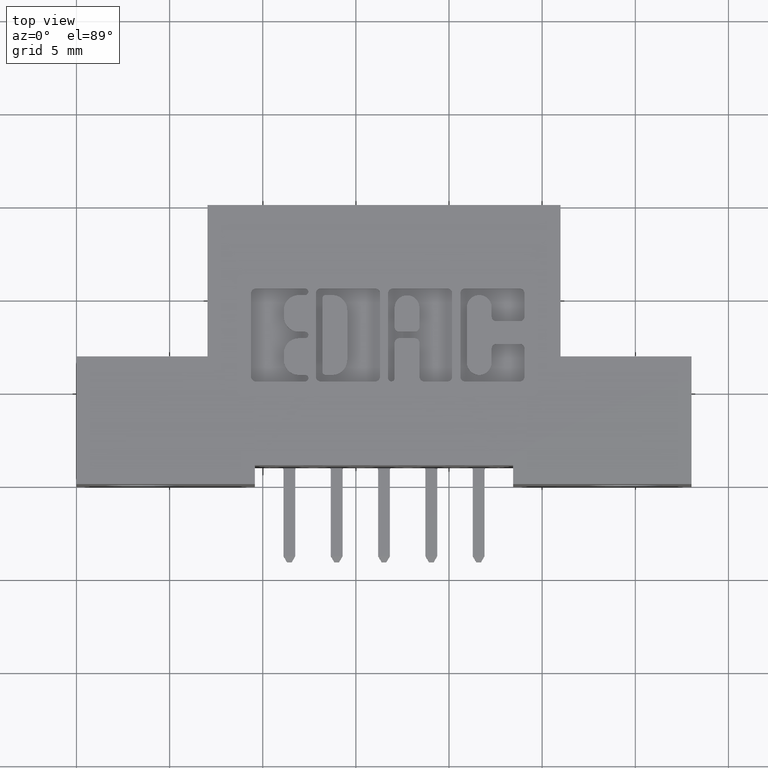
[diagram: clean part render]
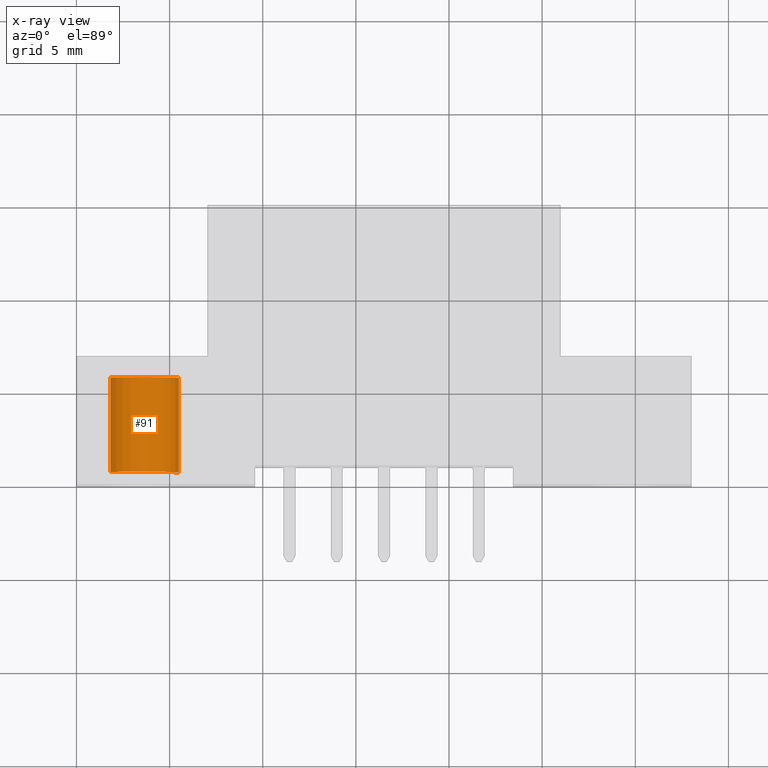
[diagram: x-ray — body ghosted, one internal face saturated and labeled with its STEP entity id]
A machine part, top view, then the same camera in x-ray: the body is ghosted and one INTERNAL B-rep face — a face not visible from any outside direction — is saturated and labeled: STEP entity #91.
In plain terms, the highlighted cylindrical surface (partial cylindrical patch) has radius 1.9685 mm, axis along (0, 1, 0).
Its self-contained STEP definition (entity closure, byte-faithful):
#91 = ADVANCED_FACE ( 'NONE', ( #6769 ), #1126, .T. ) ;
#231 = VERTEX_POINT ( 'NONE', #3731 ) ;
#622 = ORIENTED_EDGE ( 'NONE', *, *, #1756, .T. ) ;
#1119 = CARTESIAN_POINT ( 'NONE',  ( 6.828586970339790200E-017, 0.2400000000000000500, -0.07749999999999999900 ) ) ;
#1126 = CYLINDRICAL_SURFACE ( 'NONE', #4002, 0.07749999999999999900 ) ;
#1756 = EDGE_CURVE ( 'NONE', #5180, #231, #4721, .T. ) ;
#1876 = EDGE_CURVE ( 'NONE', #5180, #1885, #4820, .T. ) ;
#1885 = VERTEX_POINT ( 'NONE', #1119 ) ;
#1889 = EDGE_LOOP ( 'NONE', ( #5995, #622, #4194, #7770 ) ) ;
#1951 = VECTOR ( 'NONE', #7142, 39.37007874015748100 ) ;
#3150 = AXIS2_PLACEMENT_3D ( 'NONE', #3299, #7964, #3965 ) ;
#3299 = CARTESIAN_POINT ( 'NONE',  ( 0.0000000000000000000, 0.03999999999999998000, 0.0000000000000000000 ) ) ;
#3698 = DIRECTION ( 'NONE',  ( -5.968164126255291300E-016, 1.000000000000000000, -4.048957226368561900E-017 ) ) ;
#3731 = CARTESIAN_POINT ( 'NONE',  ( 6.056842551509995700E-017, 0.03999999999999998000, 0.07749999999999999900 ) ) ;
#3965 = DIRECTION ( 'NONE',  ( -1.110223024625156500E-016, 0.0000000000000000000, 1.000000000000000000 ) ) ;
#3998 = DIRECTION ( 'NONE',  ( 1.110223024625156500E-016, 0.0000000000000000000, -1.000000000000000000 ) ) ;
#4002 = AXIS2_PLACEMENT_3D ( 'NONE', #5728, #7233, #3998 ) ;
#4194 = ORIENTED_EDGE ( 'NONE', *, *, #8926, .T. ) ;
#4324 = CARTESIAN_POINT ( 'NONE',  ( 6.828586970339790200E-017, 0.03999999999999998000, -0.07749999999999999900 ) ) ;
#4440 = VERTEX_POINT ( 'NONE', #4324 ) ;
#4511 = VECTOR ( 'NONE', #6451, 39.37007874015748100 ) ;
#4721 = LINE ( 'NONE', #5468, #4511 ) ;
#4820 = CIRCLE ( 'NONE', #6602, 0.07749999999999999900 ) ;
#5180 = VERTEX_POINT ( 'NONE', #5607 ) ;
#5468 = CARTESIAN_POINT ( 'NONE',  ( 8.867842525470242100E-019, 0.2400000000000000500, 0.07749999999999999900 ) ) ;
#5507 = LINE ( 'NONE', #6492, #1951 ) ;
#5607 = CARTESIAN_POINT ( 'NONE',  ( 6.056842551509995700E-017, 0.2400000000000000500, 0.07749999999999999900 ) ) ;
#5728 = CARTESIAN_POINT ( 'NONE',  ( 0.0000000000000000000, 0.2400000000000000500, 0.0000000000000000000 ) ) ;
#5779 = CARTESIAN_POINT ( 'NONE',  ( 0.0000000000000000000, 0.2400000000000000500, 0.0000000000000000000 ) ) ;
#5995 = ORIENTED_EDGE ( 'NONE', *, *, #1876, .F. ) ;
#6103 = DIRECTION ( 'NONE',  ( -1.110223024625156500E-016, 0.0000000000000000000, 1.000000000000000000 ) ) ;
#6451 = DIRECTION ( 'NONE',  ( 5.968164126255291300E-016, -1.000000000000000000, 4.048957226368561900E-017 ) ) ;
#6492 = CARTESIAN_POINT ( 'NONE',  ( 8.604228440844963100E-018, 0.2400000000000000500, -0.07749999999999999900 ) ) ;
#6602 = AXIS2_PLACEMENT_3D ( 'NONE', #5779, #3698, #6103 ) ;
#6654 = CIRCLE ( 'NONE', #3150, 0.07749999999999999900 ) ;
#6769 = FACE_OUTER_BOUND ( 'NONE', #1889, .T. ) ;
#7142 = DIRECTION ( 'NONE',  ( 5.968164126255291300E-016, -1.000000000000000000, 4.048957226368561900E-017 ) ) ;
#7233 = DIRECTION ( 'NONE',  ( 5.968164126255291300E-016, -1.000000000000000000, 4.048957226368561900E-017 ) ) ;
#7770 = ORIENTED_EDGE ( 'NONE', *, *, #8766, .F. ) ;
#7964 = DIRECTION ( 'NONE',  ( -5.968164126255291300E-016, 1.000000000000000000, -4.048957226368561900E-017 ) ) ;
#8766 = EDGE_CURVE ( 'NONE', #1885, #4440, #5507, .T. ) ;
#8926 = EDGE_CURVE ( 'NONE', #231, #4440, #6654, .T. ) ;